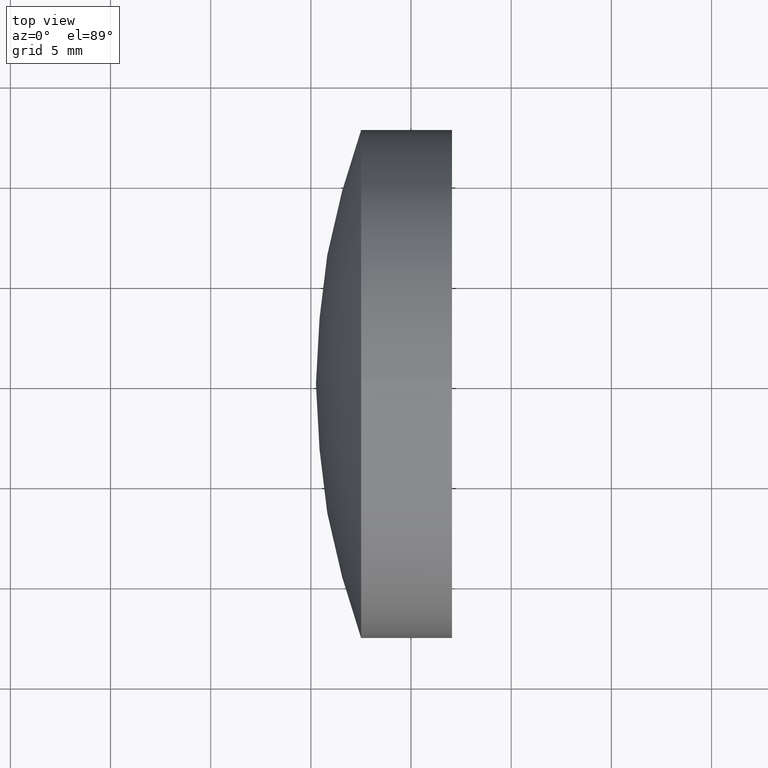
[diagram: clean part render]
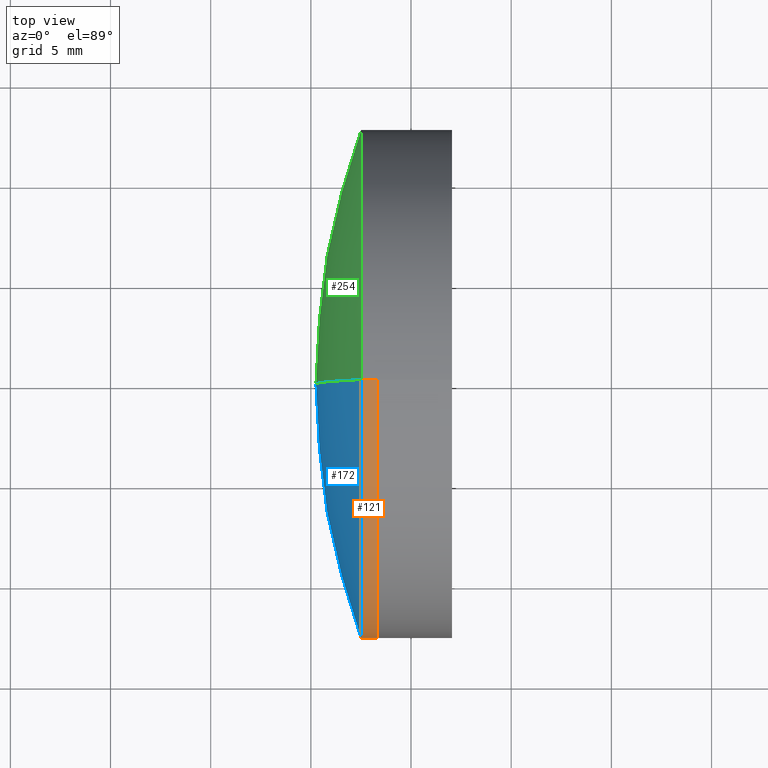
[diagram: same view with three faces highlighted in distinct colors, each labeled with its STEP entity id]
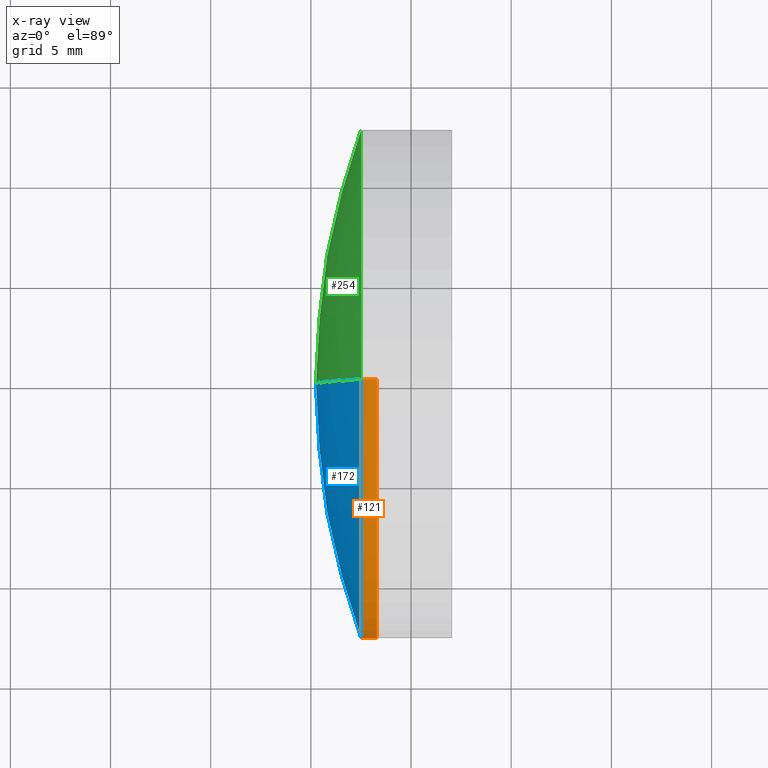
[diagram: x-ray of the same camera — body ghosted, the three highlighted faces saturated]
A machine part, top view with three faces highlighted in distinct colors.
The next image is the same camera in x-ray (body ghosted, the three faces saturated) — at least one of them is partly hidden behind the body in this view.
Their STEP definitions:

[orange] entity #121 — the highlighted cylindrical surface (partial cylindrical patch) has radius 12.7 mm, axis along (-1, -0, -0).
#15 = CARTESIAN_POINT ( 'NONE',  ( 124.5233095260452400, 0.0000000000000000000, 0.0000000000000000000 ) ) ;
#17 = CARTESIAN_POINT ( 'NONE',  ( 124.5233095260452400, 0.0000000000000000000, 12.70000000000000600 ) ) ;
#60 = VERTEX_POINT ( 'NONE', #130 ) ;
#73 = FACE_OUTER_BOUND ( 'NONE', #159, .T. ) ;
#74 = DIRECTION ( 'NONE',  ( -1.000000000000000000, -0.0000000000000000000, -0.0000000000000000000 ) ) ;
#85 = AXIS2_PLACEMENT_3D ( 'NONE', #335, #150, #310 ) ;
#86 = EDGE_CURVE ( 'NONE', #89, #344, #218, .T. ) ;
#87 = ORIENTED_EDGE ( 'NONE', *, *, #271, .F. ) ;
#89 = VERTEX_POINT ( 'NONE', #284 ) ;
#93 = EDGE_CURVE ( 'NONE', #60, #344, #281, .T. ) ;
#121 = ADVANCED_FACE ( 'NONE', ( #73 ), #187, .T. ) ;
#130 = CARTESIAN_POINT ( 'NONE',  ( 303.2964480163323600, 0.0000000000000000000, 12.70000000000000600 ) ) ;
#131 = DIRECTION ( 'NONE',  ( -1.000000000000000000, -0.0000000000000000000, -0.0000000000000000000 ) ) ;
#136 = VECTOR ( 'NONE', #164, 1000.000000000000000 ) ;
#139 = ORIENTED_EDGE ( 'NONE', *, *, #93, .T. ) ;
#150 = DIRECTION ( 'NONE',  ( -1.000000000000000000, -0.0000000000000000000, -0.0000000000000000000 ) ) ;
#159 = EDGE_LOOP ( 'NONE', ( #87, #273, #139, #165 ) ) ;
#164 = DIRECTION ( 'NONE',  ( -1.000000000000000000, -0.0000000000000000000, -0.0000000000000000000 ) ) ;
#165 = ORIENTED_EDGE ( 'NONE', *, *, #86, .F. ) ;
#171 = AXIS2_PLACEMENT_3D ( 'NONE', #15, #74, #200 ) ;
#180 = EDGE_CURVE ( 'NONE', #182, #60, #210, .T. ) ;
#182 = VERTEX_POINT ( 'NONE', #309 ) ;
#187 = CYLINDRICAL_SURFACE ( 'NONE', #171, 12.70000000000000600 ) ;
#200 = DIRECTION ( 'NONE',  ( 0.0000000000000000000, 0.0000000000000000000, 1.000000000000000000 ) ) ;
#201 = VECTOR ( 'NONE', #282, 1000.000000000000000 ) ;
#210 = CIRCLE ( 'NONE', #223, 12.70000000000000600 ) ;
#211 = CARTESIAN_POINT ( 'NONE',  ( 303.2964480163323600, 0.0000000000000000000, 0.0000000000000000000 ) ) ;
#213 = CARTESIAN_POINT ( 'NONE',  ( 124.5233095260452400, 1.555301434917139200E-015, -12.70000000000000600 ) ) ;
#218 = CIRCLE ( 'NONE', #85, 12.70000000000000600 ) ;
#223 = AXIS2_PLACEMENT_3D ( 'NONE', #211, #131, #316 ) ;
#233 = LINE ( 'NONE', #213, #136 ) ;
#238 = CARTESIAN_POINT ( 'NONE',  ( 302.5086398407654000, -1.555301434917138000E-015, 12.70000000000000500 ) ) ;
#271 = EDGE_CURVE ( 'NONE', #182, #89, #233, .T. ) ;
#273 = ORIENTED_EDGE ( 'NONE', *, *, #180, .T. ) ;
#281 = LINE ( 'NONE', #17, #201 ) ;
#282 = DIRECTION ( 'NONE',  ( -1.000000000000000000, -0.0000000000000000000, -0.0000000000000000000 ) ) ;
#284 = CARTESIAN_POINT ( 'NONE',  ( 302.5086398407654000, 0.0000000000000000000, -12.69999999999999800 ) ) ;
#309 = CARTESIAN_POINT ( 'NONE',  ( 303.2964480163323600, 1.555301434917139200E-015, -12.70000000000000600 ) ) ;
#310 = DIRECTION ( 'NONE',  ( 0.0000000000000000000, 0.0000000000000000000, 1.000000000000000000 ) ) ;
#316 = DIRECTION ( 'NONE',  ( 0.0000000000000000000, 0.0000000000000000000, 1.000000000000000000 ) ) ;
#335 = CARTESIAN_POINT ( 'NONE',  ( 302.5086398407654000, 0.0000000000000000000, 0.0000000000000000000 ) ) ;
#344 = VERTEX_POINT ( 'NONE', #238 ) ;

[blue] entity #172 — the highlighted spherical surface has radius 36.9 mm.
#8 = EDGE_CURVE ( 'NONE', #344, #224, #245, .T. ) ;
#11 = EDGE_LOOP ( 'NONE', ( #237, #134, #220 ) ) ;
#21 = DIRECTION ( 'NONE',  ( 0.0000000000000000000, -1.000000000000000000, -1.224646799147353200E-016 ) ) ;
#45 = CIRCLE ( 'NONE', #315, 36.89999999999999100 ) ;
#85 = AXIS2_PLACEMENT_3D ( 'NONE', #335, #150, #310 ) ;
#86 = EDGE_CURVE ( 'NONE', #89, #344, #218, .T. ) ;
#89 = VERTEX_POINT ( 'NONE', #284 ) ;
#103 = SPHERICAL_SURFACE ( 'NONE', #265, 36.89999999999999100 ) ;
#120 = DIRECTION ( 'NONE',  ( -0.0000000000000000000, -1.000000000000000000, -0.0000000000000000000 ) ) ;
#134 = ORIENTED_EDGE ( 'NONE', *, *, #8, .T. ) ;
#137 = FACE_OUTER_BOUND ( 'NONE', #11, .T. ) ;
#150 = DIRECTION ( 'NONE',  ( -1.000000000000000000, -0.0000000000000000000, -0.0000000000000000000 ) ) ;
#160 = CARTESIAN_POINT ( 'NONE',  ( 300.2542744864173300, 0.0000000000000000000, 4.679420559480362800E-015 ) ) ;
#172 = ADVANCED_FACE ( 'NONE', ( #137 ), #103, .T. ) ;
#174 = DIRECTION ( 'NONE',  ( 0.0000000000000000000, 0.0000000000000000000, -1.000000000000000000 ) ) ;
#181 = DIRECTION ( 'NONE',  ( 0.0000000000000000000, 1.224646799147353200E-016, -1.000000000000000000 ) ) ;
#205 = CARTESIAN_POINT ( 'NONE',  ( 337.1542744864173100, 0.0000000000000000000, 6.938893903907228400E-015 ) ) ;
#218 = CIRCLE ( 'NONE', #85, 12.70000000000000600 ) ;
#220 = ORIENTED_EDGE ( 'NONE', *, *, #251, .F. ) ;
#224 = VERTEX_POINT ( 'NONE', #160 ) ;
#237 = ORIENTED_EDGE ( 'NONE', *, *, #86, .T. ) ;
#238 = CARTESIAN_POINT ( 'NONE',  ( 302.5086398407654000, -1.555301434917138000E-015, 12.70000000000000500 ) ) ;
#245 = CIRCLE ( 'NONE', #321, 36.89999999999999100 ) ;
#247 = DIRECTION ( 'NONE',  ( 0.0000000000000000000, 1.000000000000000000, -0.0000000000000000000 ) ) ;
#251 = EDGE_CURVE ( 'NONE', #89, #224, #45, .T. ) ;
#265 = AXIS2_PLACEMENT_3D ( 'NONE', #330, #120, #174 ) ;
#269 = DIRECTION ( 'NONE',  ( 0.0000000000000000000, 0.0000000000000000000, 1.000000000000000000 ) ) ;
#284 = CARTESIAN_POINT ( 'NONE',  ( 302.5086398407654000, 0.0000000000000000000, -12.69999999999999800 ) ) ;
#295 = CARTESIAN_POINT ( 'NONE',  ( 337.1542744864173100, 0.0000000000000000000, 6.938893903907228400E-015 ) ) ;
#310 = DIRECTION ( 'NONE',  ( 0.0000000000000000000, 0.0000000000000000000, 1.000000000000000000 ) ) ;
#315 = AXIS2_PLACEMENT_3D ( 'NONE', #295, #247, #269 ) ;
#321 = AXIS2_PLACEMENT_3D ( 'NONE', #205, #21, #181 ) ;
#330 = CARTESIAN_POINT ( 'NONE',  ( 337.1542744864173100, 0.0000000000000000000, 6.938893903907228400E-015 ) ) ;
#335 = CARTESIAN_POINT ( 'NONE',  ( 302.5086398407654000, 0.0000000000000000000, 0.0000000000000000000 ) ) ;
#344 = VERTEX_POINT ( 'NONE', #238 ) ;

[green] entity #254 — the highlighted spherical surface has radius 36.9 mm.
#8 = EDGE_CURVE ( 'NONE', #344, #224, #245, .T. ) ;
#21 = DIRECTION ( 'NONE',  ( 0.0000000000000000000, -1.000000000000000000, -1.224646799147353200E-016 ) ) ;
#23 = AXIS2_PLACEMENT_3D ( 'NONE', #267, #59, #292 ) ;
#34 = ORIENTED_EDGE ( 'NONE', *, *, #8, .F. ) ;
#40 = AXIS2_PLACEMENT_3D ( 'NONE', #184, #162, #186 ) ;
#45 = CIRCLE ( 'NONE', #315, 36.89999999999999100 ) ;
#59 = DIRECTION ( 'NONE',  ( -0.0000000000000000000, -1.000000000000000000, -0.0000000000000000000 ) ) ;
#89 = VERTEX_POINT ( 'NONE', #284 ) ;
#116 = CIRCLE ( 'NONE', #40, 12.70000000000000600 ) ;
#129 = ORIENTED_EDGE ( 'NONE', *, *, #251, .T. ) ;
#160 = CARTESIAN_POINT ( 'NONE',  ( 300.2542744864173300, 0.0000000000000000000, 4.679420559480362800E-015 ) ) ;
#162 = DIRECTION ( 'NONE',  ( -1.000000000000000000, -0.0000000000000000000, -0.0000000000000000000 ) ) ;
#176 = EDGE_LOOP ( 'NONE', ( #34, #192, #129 ) ) ;
#181 = DIRECTION ( 'NONE',  ( 0.0000000000000000000, 1.224646799147353200E-016, -1.000000000000000000 ) ) ;
#184 = CARTESIAN_POINT ( 'NONE',  ( 302.5086398407654000, 0.0000000000000000000, 0.0000000000000000000 ) ) ;
#186 = DIRECTION ( 'NONE',  ( 0.0000000000000000000, 0.0000000000000000000, 1.000000000000000000 ) ) ;
#192 = ORIENTED_EDGE ( 'NONE', *, *, #287, .T. ) ;
#205 = CARTESIAN_POINT ( 'NONE',  ( 337.1542744864173100, 0.0000000000000000000, 6.938893903907228400E-015 ) ) ;
#224 = VERTEX_POINT ( 'NONE', #160 ) ;
#238 = CARTESIAN_POINT ( 'NONE',  ( 302.5086398407654000, -1.555301434917138000E-015, 12.70000000000000500 ) ) ;
#245 = CIRCLE ( 'NONE', #321, 36.89999999999999100 ) ;
#247 = DIRECTION ( 'NONE',  ( 0.0000000000000000000, 1.000000000000000000, -0.0000000000000000000 ) ) ;
#251 = EDGE_CURVE ( 'NONE', #89, #224, #45, .T. ) ;
#254 = ADVANCED_FACE ( 'NONE', ( #323 ), #274, .T. ) ;
#267 = CARTESIAN_POINT ( 'NONE',  ( 337.1542744864173100, 0.0000000000000000000, 6.938893903907228400E-015 ) ) ;
#269 = DIRECTION ( 'NONE',  ( 0.0000000000000000000, 0.0000000000000000000, 1.000000000000000000 ) ) ;
#274 = SPHERICAL_SURFACE ( 'NONE', #23, 36.89999999999999100 ) ;
#284 = CARTESIAN_POINT ( 'NONE',  ( 302.5086398407654000, 0.0000000000000000000, -12.69999999999999800 ) ) ;
#287 = EDGE_CURVE ( 'NONE', #344, #89, #116, .T. ) ;
#292 = DIRECTION ( 'NONE',  ( 0.0000000000000000000, 0.0000000000000000000, -1.000000000000000000 ) ) ;
#295 = CARTESIAN_POINT ( 'NONE',  ( 337.1542744864173100, 0.0000000000000000000, 6.938893903907228400E-015 ) ) ;
#315 = AXIS2_PLACEMENT_3D ( 'NONE', #295, #247, #269 ) ;
#321 = AXIS2_PLACEMENT_3D ( 'NONE', #205, #21, #181 ) ;
#323 = FACE_OUTER_BOUND ( 'NONE', #176, .T. ) ;
#344 = VERTEX_POINT ( 'NONE', #238 ) ;